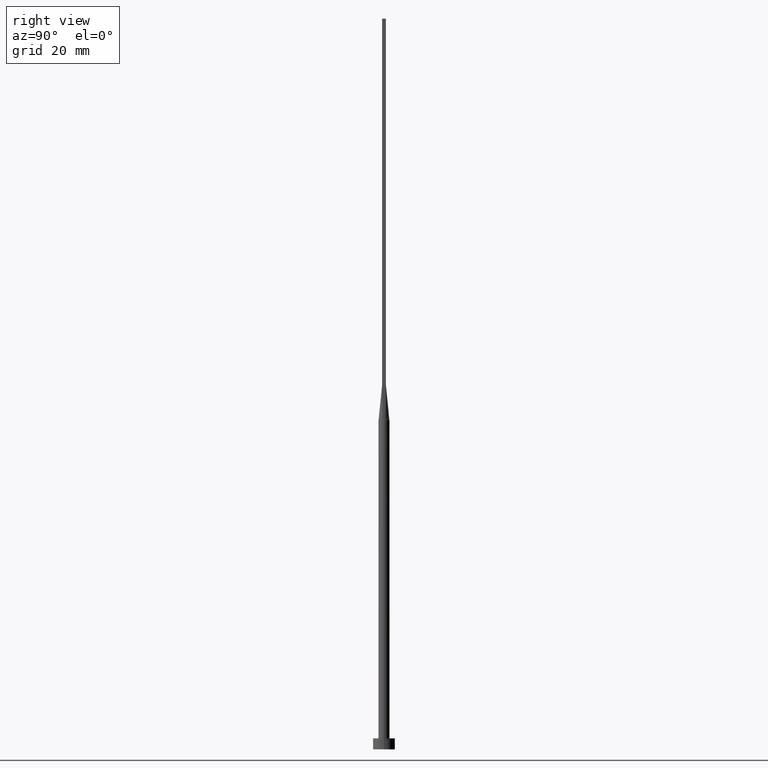
[diagram: clean part render]
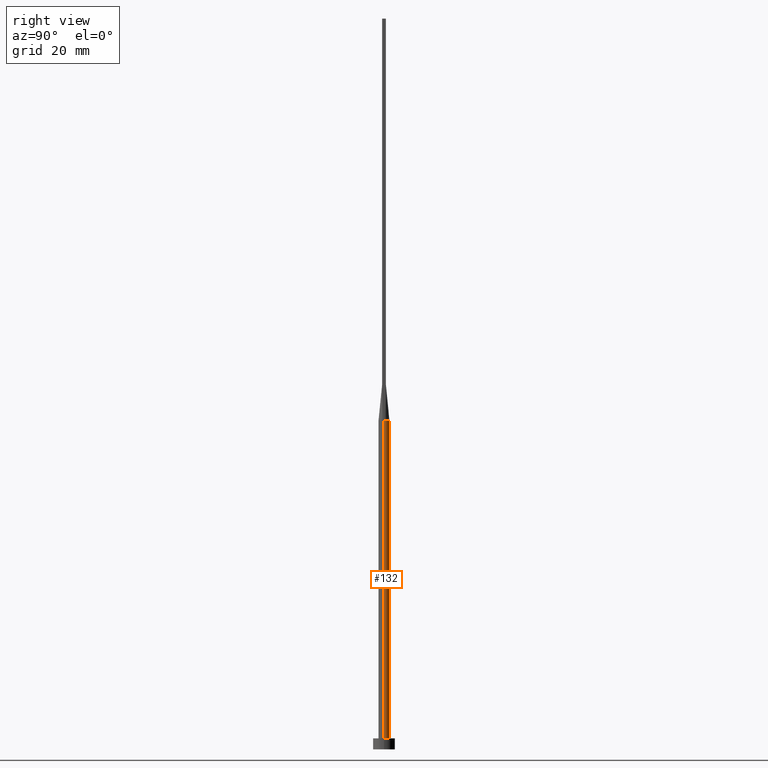
[diagram: same view with one face highlighted and labeled with its STEP entity id]
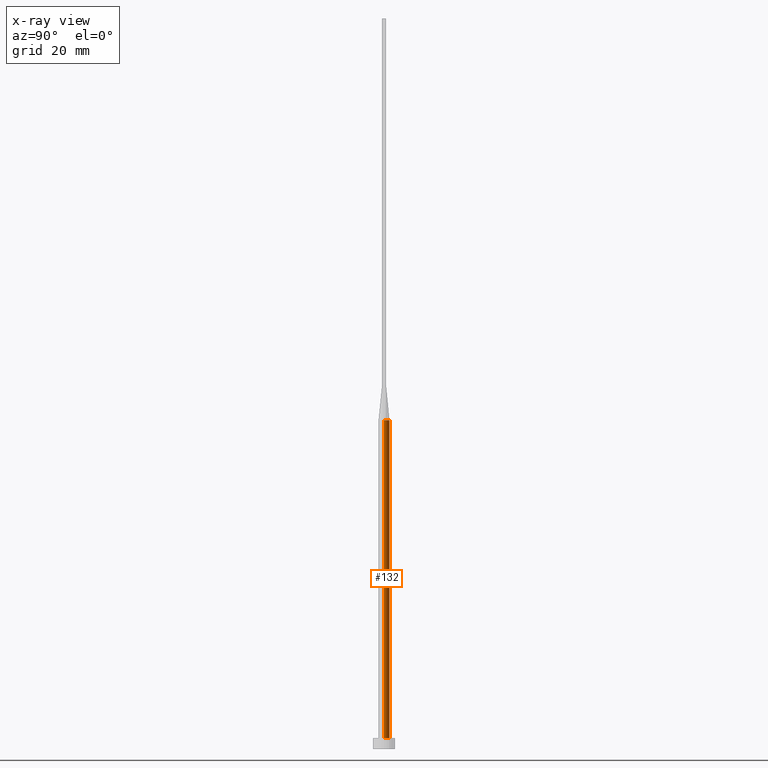
[diagram: x-ray of the same camera — body ghosted, the highlighted face saturated]
A machine part, right view. The second image highlights one B-rep face of the part: STEP entity #132.
The next image is the same camera in x-ray: the body ghosted, the highlighted face saturated — about 0% of this face is hidden behind the body in this view.
In plain terms, the highlighted cylindrical surface (edge-blend (fillet) strip) has radius 1.5 mm, axis along (-0, -0, -1).
Its self-contained STEP definition (entity closure, byte-faithful):
#7 = EDGE_CURVE ( 'NONE', #493, #580, #53, .T. ) ;
#29 = CARTESIAN_POINT ( 'NONE',  ( 1.412628473635865189, 0.5045102250504699404, 90.00000000000000000 ) ) ;
#30 = VERTEX_POINT ( 'NONE', #348 ) ;
#33 = EDGE_LOOP ( 'NONE', ( #346, #559, #579, #40, #260, #498 ) ) ;
#40 = ORIENTED_EDGE ( 'NONE', *, *, #492, .F. ) ;
#45 = EDGE_CURVE ( 'NONE', #138, #30, #206, .T. ) ;
#53 = CIRCLE ( 'NONE', #360, 1.500000000000000222 ) ;
#55 = CARTESIAN_POINT ( 'NONE',  ( 0.000000000000000000, 0.000000000000000000, 3.000000000000000000 ) ) ;
#57 = CARTESIAN_POINT ( 'NONE',  ( -1.412646936588081381, 0.5045169241220069933, 90.00000000000000000 ) ) ;
#60 = VECTOR ( 'NONE', #258, 1000.000000000000000 ) ;
#74 = AXIS2_PLACEMENT_3D ( 'NONE', #285, #512, #415 ) ;
#77 = CARTESIAN_POINT ( 'NONE',  ( -1.062433464748102407, 1.070418989248103525, 89.99999999999997158 ) ) ;
#83 = VERTEX_POINT ( 'NONE', #241 ) ;
#99 = CARTESIAN_POINT ( 'NONE',  ( 1.500000000000000000, 1.053334699963867185E-17, 90.00000000000000000 ) ) ;
#103 = B_SPLINE_CURVE_WITH_KNOTS ( 'NONE', 3,
 ( #29, #524, #119, #392, #387, #115, #301, #574, #170, #211, #294, #341, #487, #77, #203, #304, #570, #264 ),
 .UNSPECIFIED., .F., .F.,
 ( 4, 2, 2, 2, 2, 2, 2, 2, 4 ),
 ( 0.000000000000000000, 0.1250000000000000000, 0.2500000000000000000, 0.3750000000000000000, 0.5000000000000000000, 0.6250000000000000000, 0.7500000000000000000, 0.8750000000000000000, 1.000000000000000000 ),
 .UNSPECIFIED. ) ;
#108 = CARTESIAN_POINT ( 'NONE',  ( 0.000000000000000000, 0.000000000000000000, 90.00000000000000000 ) ) ;
#115 = CARTESIAN_POINT ( 'NONE',  ( 0.8182264876570948253, 1.266912425724810110, 89.99999999999997158 ) ) ;
#119 = CARTESIAN_POINT ( 'NONE',  ( 1.316960349798174557, 0.7311494208568982689, 90.00000000000001421 ) ) ;
#132 = ADVANCED_FACE ( 'NONE', ( #373 ), #455, .T. ) ;
#138 = VERTEX_POINT ( 'NONE', #99 ) ;
#140 = LINE ( 'NONE', #461, #286 ) ;
#149 = CIRCLE ( 'NONE', #453, 1.500000000000000222 ) ;
#154 = DIRECTION ( 'NONE',  ( 1.000000000000000000, 0.000000000000000000, 0.000000000000000000 ) ) ;
#162 = DIRECTION ( 'NONE',  ( 1.000000000000000000, 0.000000000000000000, 0.000000000000000000 ) ) ;
#170 = CARTESIAN_POINT ( 'NONE',  ( 0.1761797990592590679, 1.500000000000000222, 90.00000000000000000 ) ) ;
#195 = CARTESIAN_POINT ( 'NONE',  ( 1.412628473635865189, 0.5045102250504699404, 90.00000000000000000 ) ) ;
#203 = CARTESIAN_POINT ( 'NONE',  ( -1.161819288130433891, 0.9587178835757675932, 90.00000000000002842 ) ) ;
#206 = LINE ( 'NONE', #444, #60 ) ;
#211 = CARTESIAN_POINT ( 'NONE',  ( -0.1761797990592590402, 1.499999999999999778, 89.99999999999997158 ) ) ;
#223 = AXIS2_PLACEMENT_3D ( 'NONE', #55, #562, #162 ) ;
#233 = CIRCLE ( 'NONE', #223, 1.500000000000000222 ) ;
#241 = CARTESIAN_POINT ( 'NONE',  ( -1.500000000000000222, 0.000000000000000000, 3.000000000000000000 ) ) ;
#256 = VERTEX_POINT ( 'NONE', #195 ) ;
#258 = DIRECTION ( 'NONE',  ( -0.000000000000000000, -0.000000000000000000, -1.000000000000000000 ) ) ;
#260 = ORIENTED_EDGE ( 'NONE', *, *, #7, .F. ) ;
#264 = CARTESIAN_POINT ( 'NONE',  ( -1.412646936588081381, 0.5045169241220069933, 90.00000000000000000 ) ) ;
#278 = EDGE_CURVE ( 'NONE', #30, #83, #233, .T. ) ;
#285 = CARTESIAN_POINT ( 'NONE',  ( 0.000000000000000000, 0.000000000000000000, 90.00000000000000000 ) ) ;
#286 = VECTOR ( 'NONE', #323, 1000.000000000000000 ) ;
#288 = EDGE_CURVE ( 'NONE', #256, #493, #103, .T. ) ;
#294 = CARTESIAN_POINT ( 'NONE',  ( -0.3520402531411749858, 1.468082505288407891, 90.00000000000000000 ) ) ;
#301 = CARTESIAN_POINT ( 'NONE',  ( 0.6732153042498577600, 1.351288176626052717, 90.00000000000000000 ) ) ;
#304 = CARTESIAN_POINT ( 'NONE',  ( -1.316960349798174557, 0.7311494208568980468, 90.00000000000004263 ) ) ;
#323 = DIRECTION ( 'NONE',  ( -0.000000000000000000, -0.000000000000000000, -1.000000000000000000 ) ) ;
#341 = CARTESIAN_POINT ( 'NONE',  ( -0.6732153042498576490, 1.351288176626052495, 90.00000000000001421 ) ) ;
#346 = ORIENTED_EDGE ( 'NONE', *, *, #389, .F. ) ;
#348 = CARTESIAN_POINT ( 'NONE',  ( 1.500000000000000222, 1.836970198721030181E-16, 3.000000000000000000 ) ) ;
#360 = AXIS2_PLACEMENT_3D ( 'NONE', #403, #530, #569 ) ;
#373 = FACE_OUTER_BOUND ( 'NONE', #33, .T. ) ;
#387 = CARTESIAN_POINT ( 'NONE',  ( 1.062433464748102407, 1.070418989248103525, 90.00000000000000000 ) ) ;
#389 = EDGE_CURVE ( 'NONE', #138, #256, #149, .T. ) ;
#392 = CARTESIAN_POINT ( 'NONE',  ( 1.161819288130433891, 0.9587178835757675932, 90.00000000000001421 ) ) ;
#403 = CARTESIAN_POINT ( 'NONE',  ( 0.000000000000000000, 0.000000000000000000, 90.00000000000000000 ) ) ;
#413 = CARTESIAN_POINT ( 'NONE',  ( -1.500000000000000000, -6.850053904551815961E-17, 90.00000000000000000 ) ) ;
#415 = DIRECTION ( 'NONE',  ( -1.000000000000000000, 0.000000000000000000, 0.000000000000000000 ) ) ;
#444 = CARTESIAN_POINT ( 'NONE',  ( 1.500000000000000222, 1.836970198721030181E-16, 90.00000000000000000 ) ) ;
#453 = AXIS2_PLACEMENT_3D ( 'NONE', #108, #471, #154 ) ;
#455 = CYLINDRICAL_SURFACE ( 'NONE', #74, 1.500000000000000222 ) ;
#461 = CARTESIAN_POINT ( 'NONE',  ( -1.500000000000000222, 0.000000000000000000, 90.00000000000000000 ) ) ;
#471 = DIRECTION ( 'NONE',  ( 0.000000000000000000, 0.000000000000000000, 1.000000000000000000 ) ) ;
#487 = CARTESIAN_POINT ( 'NONE',  ( -0.8182264876570950474, 1.266912425724810554, 89.99999999999998579 ) ) ;
#492 = EDGE_CURVE ( 'NONE', #580, #83, #140, .T. ) ;
#493 = VERTEX_POINT ( 'NONE', #57 ) ;
#498 = ORIENTED_EDGE ( 'NONE', *, *, #288, .F. ) ;
#512 = DIRECTION ( 'NONE',  ( -0.000000000000000000, -0.000000000000000000, -1.000000000000000000 ) ) ;
#524 = CARTESIAN_POINT ( 'NONE',  ( 1.373020107211261109, 0.6153643240040217455, 90.00000000000001421 ) ) ;
#530 = DIRECTION ( 'NONE',  ( 0.000000000000000000, 0.000000000000000000, 1.000000000000000000 ) ) ;
#559 = ORIENTED_EDGE ( 'NONE', *, *, #45, .T. ) ;
#562 = DIRECTION ( 'NONE',  ( 0.000000000000000000, 0.000000000000000000, 1.000000000000000000 ) ) ;
#569 = DIRECTION ( 'NONE',  ( 1.000000000000000000, 0.000000000000000000, 0.000000000000000000 ) ) ;
#570 = CARTESIAN_POINT ( 'NONE',  ( -1.373020107211261331, 0.6153643240040217455, 90.00000000000000000 ) ) ;
#574 = CARTESIAN_POINT ( 'NONE',  ( 0.3520402531411749303, 1.468082505288407447, 90.00000000000001421 ) ) ;
#579 = ORIENTED_EDGE ( 'NONE', *, *, #278, .T. ) ;
#580 = VERTEX_POINT ( 'NONE', #413 ) ;